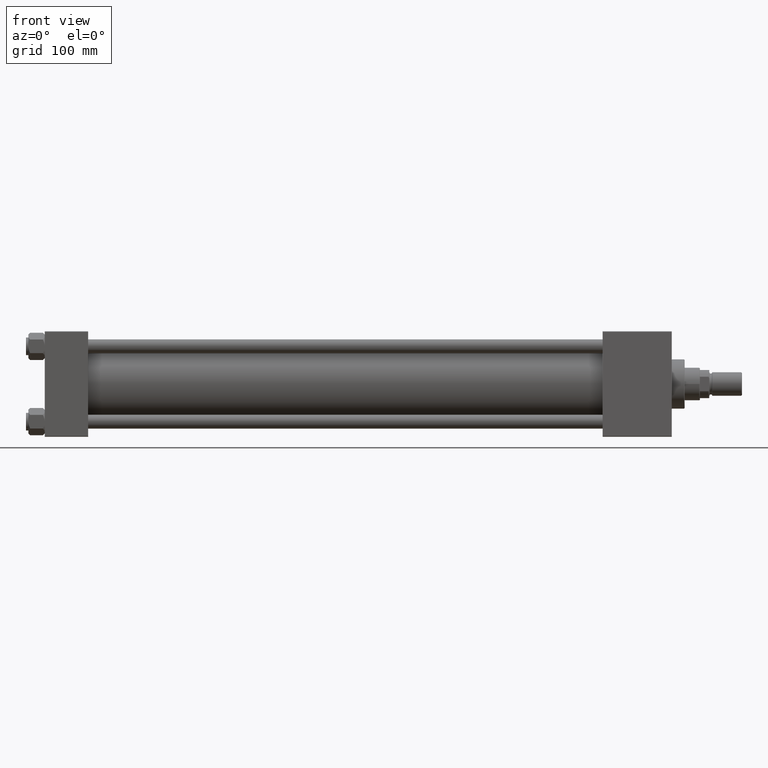
[diagram: clean part render]
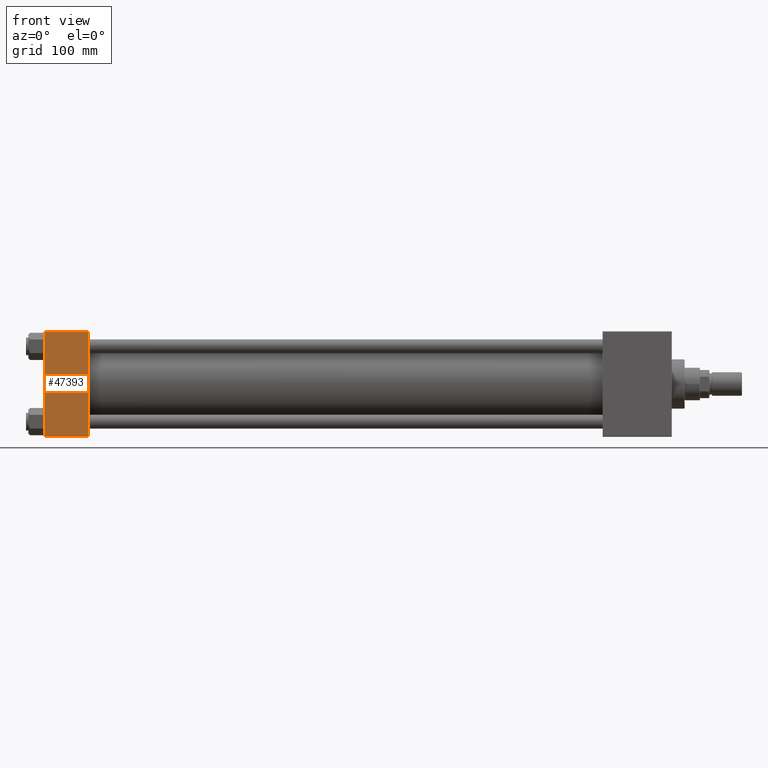
[diagram: same view with one face highlighted and labeled with its STEP entity id]
A machine part, front view. The second image highlights one B-rep face of the part: STEP entity #47393.
In plain terms, the highlighted planar face has unit normal (0, 1, 0).
Its self-contained STEP definition (entity closure, byte-faithful):
#168 = VERTEX_POINT ( 'NONE', #42718 ) ;
#180 = VECTOR ( 'NONE', #27676, 1000.000000000000000 ) ;
#258 = CARTESIAN_POINT ( 'NONE',  ( 37.00000000000000000, -45.00000000000000000, -44.49999999999998579 ) ) ;
#787 = CARTESIAN_POINT ( 'NONE',  ( 0.000000000000000000, -45.00000000000000711, 44.49999999999997158 ) ) ;
#912 = LINE ( 'NONE', #4760, #12296 ) ;
#2245 = EDGE_CURVE ( 'NONE', #13580, #168, #20990, .T. ) ;
#4760 = CARTESIAN_POINT ( 'NONE',  ( 37.00000000000000000, -45.00000000000000711, 45.00000000000000000 ) ) ;
#8760 = ORIENTED_EDGE ( 'NONE', *, *, #2245, .T. ) ;
#9678 = EDGE_LOOP ( 'NONE', ( #32081, #8760, #36003, #12714 ) ) ;
#12296 = VECTOR ( 'NONE', #32678, 1000.000000000000000 ) ;
#12714 = ORIENTED_EDGE ( 'NONE', *, *, #43036, .T. ) ;
#13580 = VERTEX_POINT ( 'NONE', #31493 ) ;
#14866 = DIRECTION ( 'NONE',  ( -0.000000000000000000, 1.000000000000000000, 7.709882115452478166E-17 ) ) ;
#17677 = LINE ( 'NONE', #33288, #38784 ) ;
#17948 = DIRECTION ( 'NONE',  ( 0.000000000000000000, -7.709882115452478166E-17, 1.000000000000000000 ) ) ;
#18570 = VERTEX_POINT ( 'NONE', #45725 ) ;
#20990 = LINE ( 'NONE', #258, #180 ) ;
#22554 = PLANE ( 'NONE',  #42951 ) ;
#27676 = DIRECTION ( 'NONE',  ( 1.000000000000000000, 0.000000000000000000, 0.000000000000000000 ) ) ;
#28642 = EDGE_CURVE ( 'NONE', #18570, #168, #912, .T. ) ;
#31493 = CARTESIAN_POINT ( 'NONE',  ( 0.000000000000000000, -45.00000000000000000, -44.49999999999995737 ) ) ;
#32081 = ORIENTED_EDGE ( 'NONE', *, *, #45362, .T. ) ;
#32678 = DIRECTION ( 'NONE',  ( 0.000000000000000000, 7.709882115452476934E-17, -1.000000000000000000 ) ) ;
#33288 = CARTESIAN_POINT ( 'NONE',  ( 0.000000000000000000, -45.00000000000000711, 45.00000000000000000 ) ) ;
#34326 = CARTESIAN_POINT ( 'NONE',  ( 37.00000000000000000, -45.00000000000000711, 45.00000000000000000 ) ) ;
#36003 = ORIENTED_EDGE ( 'NONE', *, *, #28642, .F. ) ;
#38784 = VECTOR ( 'NONE', #41244, 1000.000000000000000 ) ;
#38983 = LINE ( 'NONE', #47916, #43609 ) ;
#39974 = DIRECTION ( 'NONE',  ( -1.000000000000000000, 0.000000000000000000, 0.000000000000000000 ) ) ;
#41244 = DIRECTION ( 'NONE',  ( 0.000000000000000000, 7.709882115452476934E-17, -1.000000000000000000 ) ) ;
#42283 = FACE_OUTER_BOUND ( 'NONE', #9678, .T. ) ;
#42718 = CARTESIAN_POINT ( 'NONE',  ( 37.00000000000000000, -45.00000000000000000, -44.49999999999995737 ) ) ;
#42951 = AXIS2_PLACEMENT_3D ( 'NONE', #34326, #14866, #17948 ) ;
#43036 = EDGE_CURVE ( 'NONE', #18570, #47173, #38983, .T. ) ;
#43609 = VECTOR ( 'NONE', #39974, 1000.000000000000000 ) ;
#45362 = EDGE_CURVE ( 'NONE', #47173, #13580, #17677, .T. ) ;
#45725 = CARTESIAN_POINT ( 'NONE',  ( 37.00000000000000000, -45.00000000000000711, 44.49999999999997158 ) ) ;
#47173 = VERTEX_POINT ( 'NONE', #787 ) ;
#47393 = ADVANCED_FACE ( 'NONE', ( #42283 ), #22554, .F. ) ;
#47916 = CARTESIAN_POINT ( 'NONE',  ( 37.00000000000000000, -45.00000000000000711, 44.49999999999997158 ) ) ;